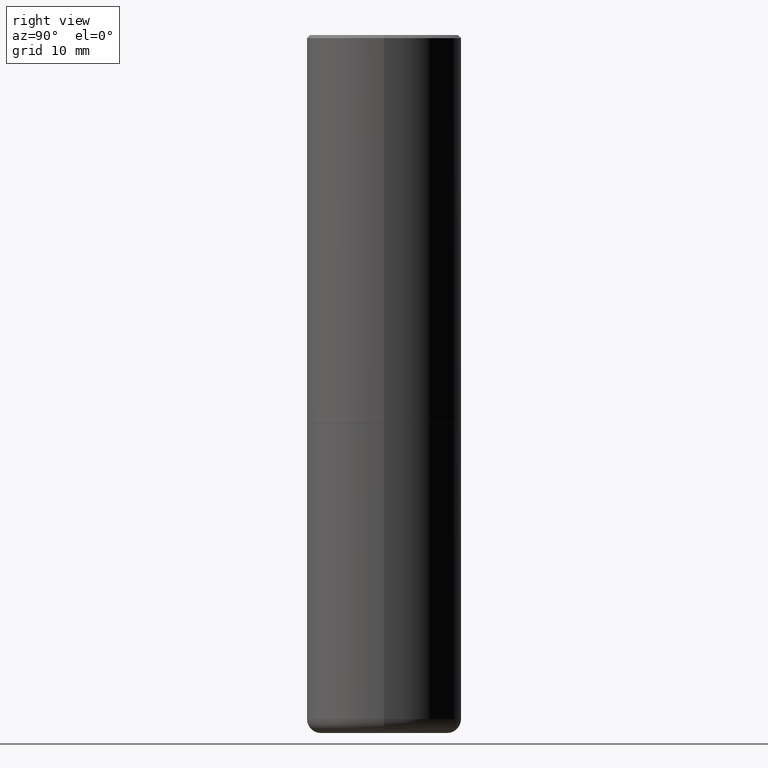
[diagram: clean part render]
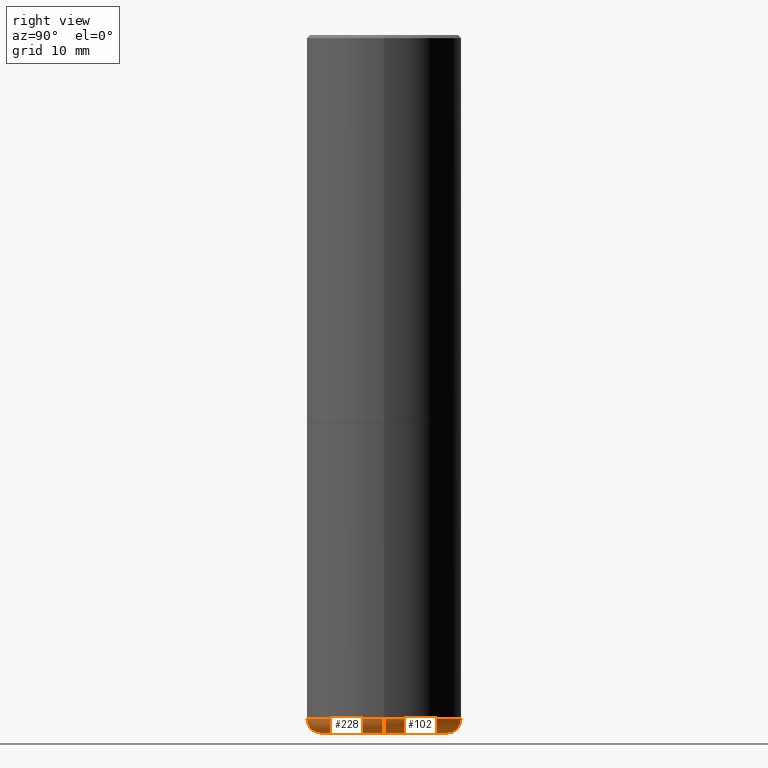
[diagram: same view with one multi-face feature highlighted, each face labeled with its STEP entity id]
A machine part, right view. The highlighted faces form ONE feature: a constant-radius fillet chain: 2 tangent blend faces with common blend radius 2.286 mm. The faces share edges in the B-rep.
Their STEP definitions:
[1] entity #228 (Torus):
#1 = DIRECTION ( 'NONE',  ( -2.445468806185136597E-29, 3.491481338843145583E-15, 1.000000000000000000 ) ) ;
#10 = CARTESIAN_POINT ( 'NONE',  ( 0.5000000000000000000, -1.888891404314140383E-14, -4.410000000000000142 ) ) ;
#12 = CARTESIAN_POINT ( 'NONE',  ( 0.4099999999999999756, -1.857468072264552372E-14, -4.500000000000000000 ) ) ;
#18 = DIRECTION ( 'NONE',  ( 7.105427357601001859E-15, 1.000000000000000000, -3.491481338843145583E-15 ) ) ;
#24 = EDGE_CURVE ( 'NONE', #32, #162, #131, .T. ) ;
#30 = CIRCLE ( 'NONE', #342, 0.4099999999999999756 ) ;
#32 = VERTEX_POINT ( 'NONE', #415 ) ;
#43 = DIRECTION ( 'NONE',  ( -2.445468806185136597E-29, 3.491481338843145583E-15, 1.000000000000000000 ) ) ;
#53 = CIRCLE ( 'NONE', #58, 0.08999999999999992728 ) ;
#58 = AXIS2_PLACEMENT_3D ( 'NONE', #173, #18, #396 ) ;
#63 = FACE_OUTER_BOUND ( 'NONE', #370, .T. ) ;
#110 = DIRECTION ( 'NONE',  ( -6.982962677686266711E-15, -1.000000000000000000, 3.491481338843145583E-15 ) ) ;
#131 = CIRCLE ( 'NONE', #358, 0.5000000000000000000 ) ;
#160 = EDGE_CURVE ( 'NONE', #352, #406, #30, .T. ) ;
#162 = VERTEX_POINT ( 'NONE', #10 ) ;
#169 = DIRECTION ( 'NONE',  ( 1.000000000000000000, -6.982962677686266711E-15, 0.000000000000000000 ) ) ;
#172 = CARTESIAN_POINT ( 'NONE',  ( 1.078451743527645302E-28, -1.539743270429827363E-14, -4.410000000000000142 ) ) ;
#173 = CARTESIAN_POINT ( 'NONE',  ( -0.4099999999999999756, -1.248420748768186344E-14, -4.410000000000000142 ) ) ;
#175 = AXIS2_PLACEMENT_3D ( 'NONE', #339, #110, #332 ) ;
#181 = CARTESIAN_POINT ( 'NONE',  ( -0.4099999999999999756, -1.232157991683776049E-14, -4.500000000000000000 ) ) ;
#183 = ORIENTED_EDGE ( 'NONE', *, *, #160, .T. ) ;
#197 = CIRCLE ( 'NONE', #175, 0.08999999999999992728 ) ;
#228 = ADVANCED_FACE ( 'NONE', ( #63 ), #411, .T. ) ;
#234 = AXIS2_PLACEMENT_3D ( 'NONE', #290, #1, #389 ) ;
#290 = CARTESIAN_POINT ( 'NONE',  ( 1.078451743527645302E-28, -1.539743270429827363E-14, -4.410000000000000142 ) ) ;
#319 = EDGE_CURVE ( 'NONE', #352, #32, #53, .T. ) ;
#326 = ORIENTED_EDGE ( 'NONE', *, *, #319, .F. ) ;
#332 = DIRECTION ( 'NONE',  ( 1.000000000000000000, -6.982962677686273810E-15, 0.000000000000000000 ) ) ;
#339 = CARTESIAN_POINT ( 'NONE',  ( 0.4099999999999999756, -1.826044740214964046E-14, -4.410000000000000142 ) ) ;
#342 = AXIS2_PLACEMENT_3D ( 'NONE', #392, #351, #169 ) ;
#351 = DIRECTION ( 'NONE',  ( -2.445468806185136597E-29, 3.491481338843145583E-15, 1.000000000000000000 ) ) ;
#352 = VERTEX_POINT ( 'NONE', #181 ) ;
#358 = AXIS2_PLACEMENT_3D ( 'NONE', #172, #43, #402 ) ;
#359 = ORIENTED_EDGE ( 'NONE', *, *, #24, .F. ) ;
#364 = ORIENTED_EDGE ( 'NONE', *, *, #407, .T. ) ;
#370 = EDGE_LOOP ( 'NONE', ( #326, #183, #364, #359 ) ) ;
#389 = DIRECTION ( 'NONE',  ( 1.000000000000000000, -6.982962677686264344E-15, 4.883557194083112340E-29 ) ) ;
#392 = CARTESIAN_POINT ( 'NONE',  ( 1.100460962783311469E-28, -1.571166602479415690E-14, -4.500000000000000000 ) ) ;
#396 = DIRECTION ( 'NONE',  ( -1.000000000000000000, 7.105427357600996337E-15, 0.000000000000000000 ) ) ;
#402 = DIRECTION ( 'NONE',  ( 1.000000000000000000, -6.982962677686270655E-15, 0.000000000000000000 ) ) ;
#406 = VERTEX_POINT ( 'NONE', #12 ) ;
#407 = EDGE_CURVE ( 'NONE', #406, #162, #197, .T. ) ;
#411 = TOROIDAL_SURFACE ( 'NONE', #234, 0.4099999999999999756, 0.08999999999999992728 ) ;
#415 = CARTESIAN_POINT ( 'NONE',  ( -0.5000000000000000000, -1.184471902549777113E-14, -4.410000000000000142 ) ) ;
[2] entity #102 (Torus):
#10 = CARTESIAN_POINT ( 'NONE',  ( 0.5000000000000000000, -1.888891404314140383E-14, -4.410000000000000142 ) ) ;
#12 = CARTESIAN_POINT ( 'NONE',  ( 0.4099999999999999756, -1.857468072264552372E-14, -4.500000000000000000 ) ) ;
#13 = AXIS2_PLACEMENT_3D ( 'NONE', #155, #126, #28 ) ;
#18 = DIRECTION ( 'NONE',  ( 7.105427357601001859E-15, 1.000000000000000000, -3.491481338843145583E-15 ) ) ;
#28 = DIRECTION ( 'NONE',  ( 1.000000000000000000, -6.982962677686264344E-15, 4.883557194083112340E-29 ) ) ;
#32 = VERTEX_POINT ( 'NONE', #415 ) ;
#33 = DIRECTION ( 'NONE',  ( -2.445468806185136597E-29, 3.491481338843145583E-15, 1.000000000000000000 ) ) ;
#49 = ORIENTED_EDGE ( 'NONE', *, *, #319, .T. ) ;
#53 = CIRCLE ( 'NONE', #58, 0.08999999999999992728 ) ;
#58 = AXIS2_PLACEMENT_3D ( 'NONE', #173, #18, #396 ) ;
#79 = DIRECTION ( 'NONE',  ( 1.000000000000000000, -6.982962677686270655E-15, 0.000000000000000000 ) ) ;
#102 = ADVANCED_FACE ( 'NONE', ( #143 ), #182, .T. ) ;
#110 = DIRECTION ( 'NONE',  ( -6.982962677686266711E-15, -1.000000000000000000, 3.491481338843145583E-15 ) ) ;
#126 = DIRECTION ( 'NONE',  ( -2.445468806185136597E-29, 3.491481338843145583E-15, 1.000000000000000000 ) ) ;
#127 = CIRCLE ( 'NONE', #227, 0.4099999999999999756 ) ;
#136 = EDGE_LOOP ( 'NONE', ( #308, #49, #338, #268 ) ) ;
#143 = FACE_OUTER_BOUND ( 'NONE', #136, .T. ) ;
#155 = CARTESIAN_POINT ( 'NONE',  ( 1.078451743527645302E-28, -1.539743270429827363E-14, -4.410000000000000142 ) ) ;
#162 = VERTEX_POINT ( 'NONE', #10 ) ;
#173 = CARTESIAN_POINT ( 'NONE',  ( -0.4099999999999999756, -1.248420748768186344E-14, -4.410000000000000142 ) ) ;
#175 = AXIS2_PLACEMENT_3D ( 'NONE', #339, #110, #332 ) ;
#181 = CARTESIAN_POINT ( 'NONE',  ( -0.4099999999999999756, -1.232157991683776049E-14, -4.500000000000000000 ) ) ;
#182 = TOROIDAL_SURFACE ( 'NONE', #13, 0.4099999999999999756, 0.08999999999999992728 ) ;
#197 = CIRCLE ( 'NONE', #175, 0.08999999999999992728 ) ;
#227 = AXIS2_PLACEMENT_3D ( 'NONE', #243, #405, #341 ) ;
#236 = EDGE_CURVE ( 'NONE', #162, #32, #289, .T. ) ;
#243 = CARTESIAN_POINT ( 'NONE',  ( 1.100460962783311469E-28, -1.571166602479415690E-14, -4.500000000000000000 ) ) ;
#268 = ORIENTED_EDGE ( 'NONE', *, *, #407, .F. ) ;
#289 = CIRCLE ( 'NONE', #294, 0.5000000000000000000 ) ;
#294 = AXIS2_PLACEMENT_3D ( 'NONE', #322, #33, #79 ) ;
#308 = ORIENTED_EDGE ( 'NONE', *, *, #344, .T. ) ;
#319 = EDGE_CURVE ( 'NONE', #352, #32, #53, .T. ) ;
#322 = CARTESIAN_POINT ( 'NONE',  ( 1.078451743527645302E-28, -1.539743270429827363E-14, -4.410000000000000142 ) ) ;
#332 = DIRECTION ( 'NONE',  ( 1.000000000000000000, -6.982962677686273810E-15, 0.000000000000000000 ) ) ;
#338 = ORIENTED_EDGE ( 'NONE', *, *, #236, .F. ) ;
#339 = CARTESIAN_POINT ( 'NONE',  ( 0.4099999999999999756, -1.826044740214964046E-14, -4.410000000000000142 ) ) ;
#341 = DIRECTION ( 'NONE',  ( 1.000000000000000000, -6.982962677686266711E-15, 0.000000000000000000 ) ) ;
#344 = EDGE_CURVE ( 'NONE', #406, #352, #127, .T. ) ;
#352 = VERTEX_POINT ( 'NONE', #181 ) ;
#396 = DIRECTION ( 'NONE',  ( -1.000000000000000000, 7.105427357600996337E-15, 0.000000000000000000 ) ) ;
#405 = DIRECTION ( 'NONE',  ( -2.445468806185136597E-29, 3.491481338843145583E-15, 1.000000000000000000 ) ) ;
#406 = VERTEX_POINT ( 'NONE', #12 ) ;
#407 = EDGE_CURVE ( 'NONE', #406, #162, #197, .T. ) ;
#415 = CARTESIAN_POINT ( 'NONE',  ( -0.5000000000000000000, -1.184471902549777113E-14, -4.410000000000000142 ) ) ;